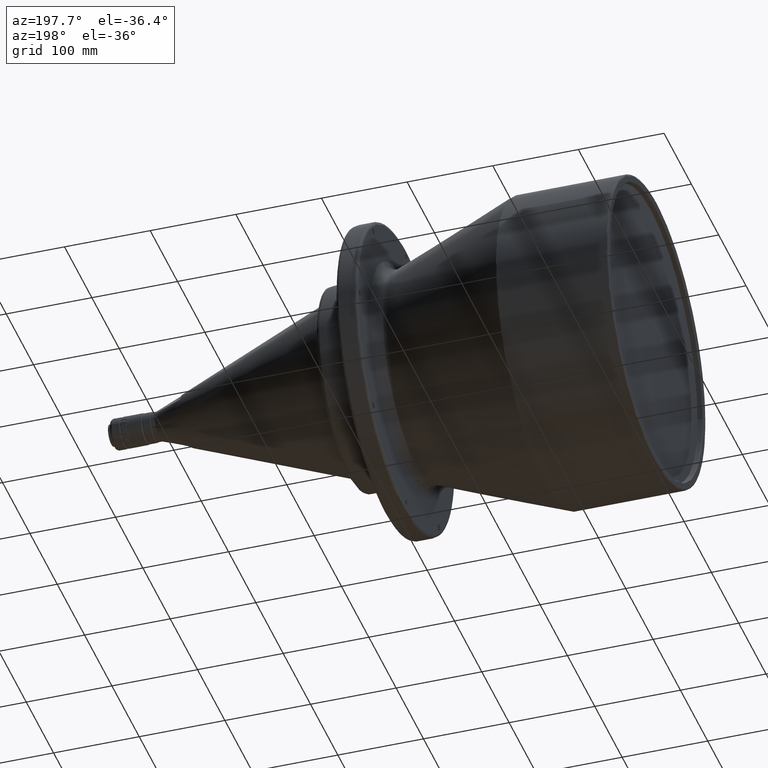
[diagram: clean part render]
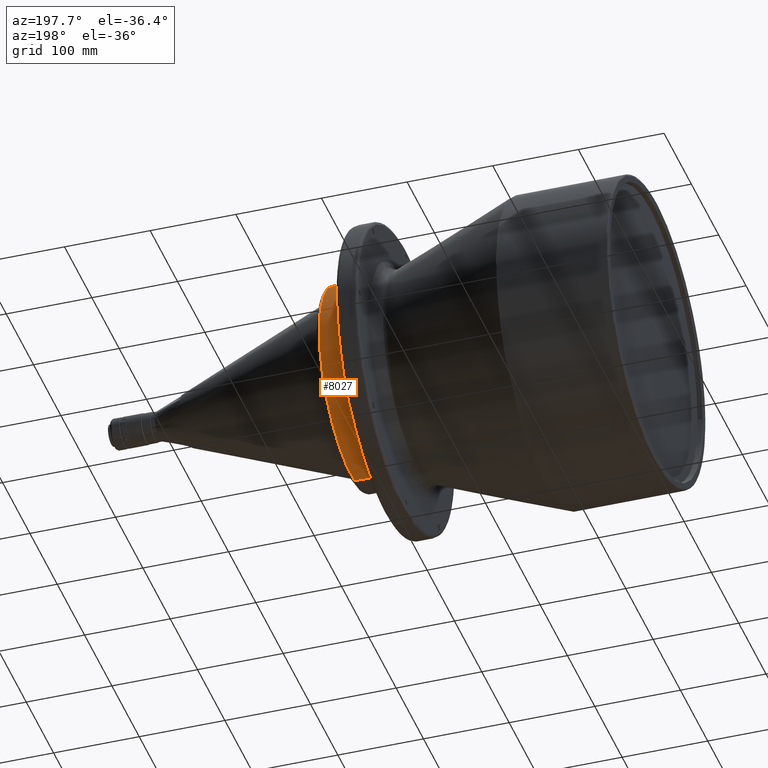
[diagram: same view with one face highlighted and labeled with its STEP entity id]
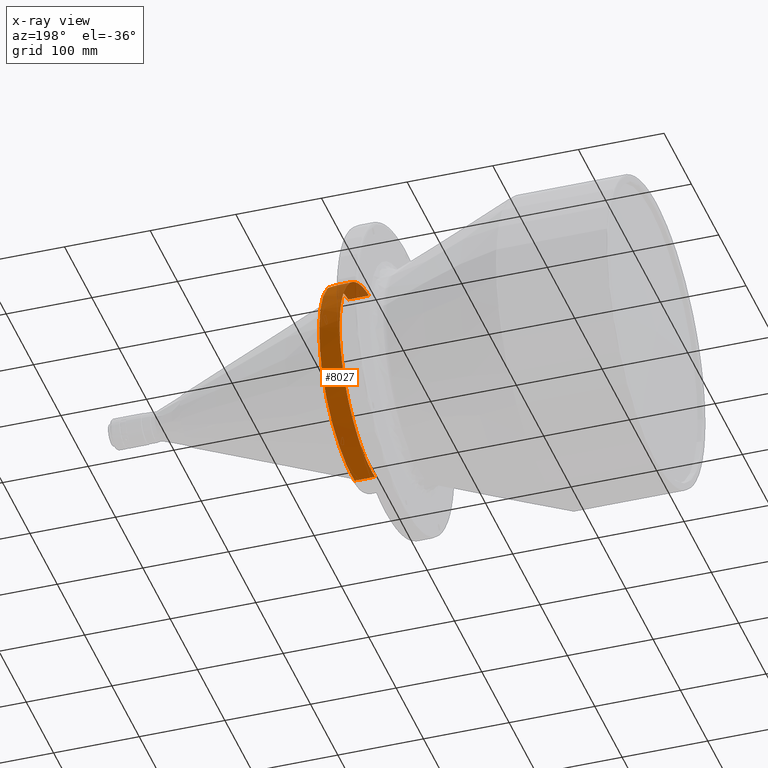
[diagram: x-ray of the same camera — body ghosted, the highlighted face saturated]
A machine part, auxiliary view. The second image highlights one B-rep face of the part: STEP entity #8027.
The next image is the same camera in x-ray: the body ghosted, the highlighted face saturated — about 9% of this face is hidden behind the body in this view.
In plain terms, the highlighted cylindrical surface (partial cylindrical patch) has radius 118 mm, axis along (-1, 0, 0).
Its self-contained STEP definition (entity closure, byte-faithful):
#227 = DIRECTION ( 'NONE',  ( -1.000000000000000000, 0.0000000000000000000, 0.0000000000000000000 ) ) ;
#487 = CARTESIAN_POINT ( 'NONE',  ( 356.5000000000000600, 10.99077668998059400, 117.4870325940313300 ) ) ;
#857 = AXIS2_PLACEMENT_3D ( 'NONE', #3796, #3756, #2156 ) ;
#928 = CIRCLE ( 'NONE', #857, 118.0000000000000100 ) ;
#1380 = ORIENTED_EDGE ( 'NONE', *, *, #9059, .F. ) ;
#1407 = EDGE_CURVE ( 'NONE', #8692, #1592, #928, .T. ) ;
#1454 = DIRECTION ( 'NONE',  ( -1.000000000000000000, 0.0000000000000000000, 0.0000000000000000000 ) ) ;
#1515 = CARTESIAN_POINT ( 'NONE',  ( 356.5000000005681500, 10.99077668997673900, 117.4870325939901200 ) ) ;
#1592 = VERTEX_POINT ( 'NONE', #7049 ) ;
#1904 = CARTESIAN_POINT ( 'NONE',  ( 356.5000000005681500, -10.99077672009894800, -117.4870325911826500 ) ) ;
#2156 = DIRECTION ( 'NONE',  ( 0.0000000000000000000, 0.09314217533881857800, 0.9956528185934857600 ) ) ;
#2276 = DIRECTION ( 'NONE',  ( 0.0000000000000000000, -0.09314217533881859200, -0.9956528185934858700 ) ) ;
#2299 = EDGE_CURVE ( 'NONE', #2532, #1592, #4215, .T. ) ;
#2532 = VERTEX_POINT ( 'NONE', #1904 ) ;
#2654 = ORIENTED_EDGE ( 'NONE', *, *, #2299, .T. ) ;
#2999 = ORIENTED_EDGE ( 'NONE', *, *, #1407, .F. ) ;
#3200 = EDGE_LOOP ( 'NONE', ( #1380, #2654, #2999, #6361 ) ) ;
#3574 = AXIS2_PLACEMENT_3D ( 'NONE', #7036, #9361, #2276 ) ;
#3628 = AXIS2_PLACEMENT_3D ( 'NONE', #7299, #8858, #7983 ) ;
#3756 = DIRECTION ( 'NONE',  ( -1.000000000000000000, 0.0000000000000000000, 0.0000000000000000000 ) ) ;
#3796 = CARTESIAN_POINT ( 'NONE',  ( 332.5000000000000000, 0.0000000000000000000, 0.0000000000000000000 ) ) ;
#3981 = CARTESIAN_POINT ( 'NONE',  ( 356.5000000000000600, -10.99077668998058000, -117.4870325940313300 ) ) ;
#4043 = FACE_OUTER_BOUND ( 'NONE', #3200, .T. ) ;
#4146 = CIRCLE ( 'NONE', #3574, 117.9999999999172500 ) ;
#4170 = VECTOR ( 'NONE', #1454, 1000.000000000000000 ) ;
#4215 = LINE ( 'NONE', #3981, #8937 ) ;
#6029 = LINE ( 'NONE', #487, #4170 ) ;
#6093 = VERTEX_POINT ( 'NONE', #1515 ) ;
#6095 = EDGE_CURVE ( 'NONE', #6093, #8692, #6029, .T. ) ;
#6361 = ORIENTED_EDGE ( 'NONE', *, *, #6095, .F. ) ;
#7036 = CARTESIAN_POINT ( 'NONE',  ( 356.5000000015150500, 0.0000000000000000000, 0.0000000000000000000 ) ) ;
#7049 = CARTESIAN_POINT ( 'NONE',  ( 332.5000000000000000, -10.99077668998058000, -117.4870325940313300 ) ) ;
#7299 = CARTESIAN_POINT ( 'NONE',  ( 356.5000000000000600, 0.0000000000000000000, 0.0000000000000000000 ) ) ;
#7983 = DIRECTION ( 'NONE',  ( 0.0000000000000000000, 0.09314217533881857800, 0.9956528185934857600 ) ) ;
#7999 = CYLINDRICAL_SURFACE ( 'NONE', #3628, 118.0000000000000100 ) ;
#8027 = ADVANCED_FACE ( 'NONE', ( #4043 ), #7999, .T. ) ;
#8692 = VERTEX_POINT ( 'NONE', #9611 ) ;
#8858 = DIRECTION ( 'NONE',  ( -1.000000000000000000, 0.0000000000000000000, 0.0000000000000000000 ) ) ;
#8937 = VECTOR ( 'NONE', #227, 1000.000000000000000 ) ;
#9059 = EDGE_CURVE ( 'NONE', #2532, #6093, #4146, .T. ) ;
#9361 = DIRECTION ( 'NONE',  ( 1.000000000000000000, 0.0000000000000000000, 0.0000000000000000000 ) ) ;
#9611 = CARTESIAN_POINT ( 'NONE',  ( 332.5000000000000000, 10.99077668998059400, 117.4870325940313300 ) ) ;